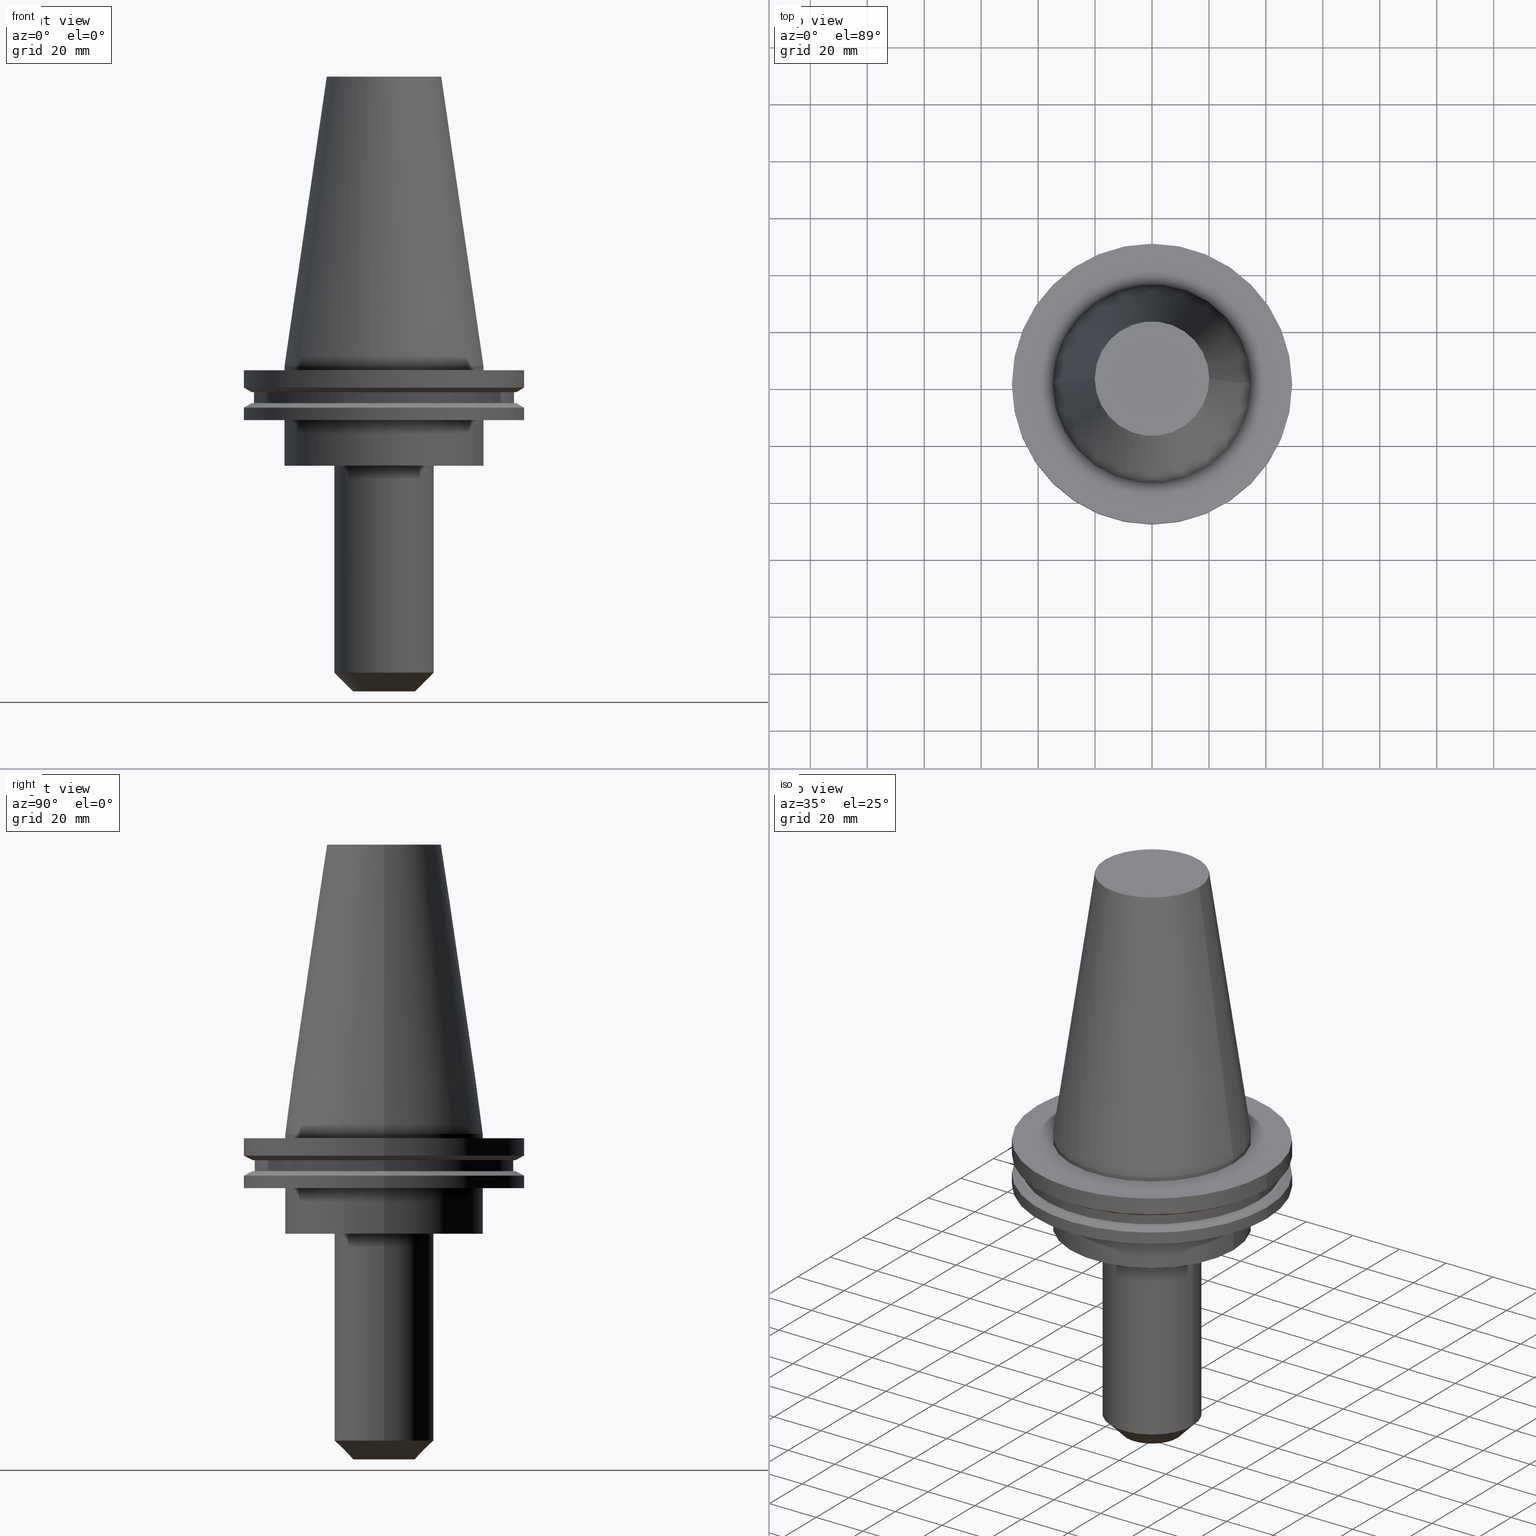
[diagram: canonical four-view strip — front | top / right | iso, engineering-drawing reading convention]
A machine part, canonical four-view strip (front | top / right | iso — engineering-drawing reading convention). The complete STEP part file that produces these views, byte-faithful:
ISO-10303-21;
HEADER;
FILE_DESCRIPTION (( 'STEP AP203' ),
    '1' );
FILE_NAME ('BCV50-EM_500-4_5.stp',
    '2022-03-03T16:43:45',
    ( '' ),
    ( '' ),
    'SwSTEP 2.0',
    'SolidWorks 2021',
    '' );
FILE_SCHEMA (( 'CONFIG_CONTROL_DESIGN' ));
ENDSEC;

DATA;
#1 = AXIS2_PLACEMENT_3D ( 'NONE', #702, #182, #779 ) ;
#2 = FACE_OUTER_BOUND ( 'NONE', #546, .T. ) ;
#3 = ADVANCED_FACE ( 'NONE', ( #620 ), #111, .T. ) ;
#4 = ORIENTED_EDGE ( 'NONE', *, *, #253, .F. ) ;
#5 = DIRECTION ( 'NONE',  ( -0.000000000000000000, -0.000000000000000000, 1.000000000000000000 ) ) ;
#6 = DIRECTION ( 'NONE',  ( 0.000000000000000000, -0.000000000000000000, 1.000000000000000000 ) ) ;
#7 = ORIENTED_EDGE ( 'NONE', *, *, #477, .T. ) ;
#8 = EDGE_CURVE ( 'NONE', #239, #487, #33, .T. ) ;
#9 = CARTESIAN_POINT ( 'NONE',  ( 0.000000000000000000, 0.000000000000000000, 0.000000000000000000 ) ) ;
#10 = VECTOR ( 'NONE', #604, 1000.000000000000000 ) ;
#11 = FACE_OUTER_BOUND ( 'NONE', #12, .T. ) ;
#12 = EDGE_LOOP ( 'NONE', ( #4, #764, #500, #728 ) ) ;
#13 = EDGE_CURVE ( 'NONE', #65, #807, #760, .T. ) ;
#14 = CARTESIAN_POINT ( 'NONE',  ( 0.000000000000000000, 0.000000000000000000, -19.04999999999999716 ) ) ;
#15 = CARTESIAN_POINT ( 'NONE',  ( -46.43919780457007818, 5.857130358318727293E-15, -9.204999999999991189 ) ) ;
#16 = AXIS2_PLACEMENT_3D ( 'NONE', #390, #190, #129 ) ;
#17 = ORIENTED_EDGE ( 'NONE', *, *, #198, .F. ) ;
#18 = DIRECTION ( 'NONE',  ( 0.7071067811865481278, 0.000000000000000000, 0.7071067811865470176 ) ) ;
#19 = DIRECTION ( 'NONE',  ( 0.1443082272672999988, 1.767266086135277066E-17, -0.9895327864921755756 ) ) ;
#20 = ORIENTED_EDGE ( 'NONE', *, *, #430, .T. ) ;
#21 = DIRECTION ( 'NONE',  ( -0.000000000000000000, -0.000000000000000000, 1.000000000000000000 ) ) ;
#22 = CARTESIAN_POINT ( 'NONE',  ( -49.21499999999998920, 6.027099222003697037E-15, -14.65761014474876944 ) ) ;
#23 = ADVANCED_BREP_SHAPE_REPRESENTATION ( 'BCV50-EM_500-4_5', ( #344, #796 ), #742 ) ;
#24 = ORIENTED_EDGE ( 'NONE', *, *, #91, .T. ) ;
#25 = DIRECTION ( 'NONE',  ( 1.000000000000000000, 0.000000000000000000, 0.000000000000000000 ) ) ;
#26 = LINE ( 'NONE', #290, #71 ) ;
#27 = EDGE_CURVE ( 'NONE', #446, #847, #671, .T. ) ;
#28 = DIRECTION ( 'NONE',  ( 1.000000000000000000, 0.000000000000000000, 0.000000000000000000 ) ) ;
#29 = AXIS2_PLACEMENT_3D ( 'NONE', #661, #265, #735 ) ;
#30 = EDGE_CURVE ( 'NONE', #255, #77, #367, .T. ) ;
#31 = LINE ( 'NONE', #90, #442 ) ;
#32 = DIRECTION ( 'NONE',  ( 1.000000000000000000, 0.000000000000000000, 0.000000000000000000 ) ) ;
#33 = LINE ( 'NONE', #237, #57 ) ;
#34 = VERTEX_POINT ( 'NONE', #767 ) ;
#35 = PERSON_AND_ORGANIZATION ( #648, #684 ) ;
#36 = ORIENTED_EDGE ( 'NONE', *, *, #789, .F. ) ;
#37 = ORIENTED_EDGE ( 'NONE', *, *, #630, .T. ) ;
#38 = DATE_AND_TIME ( #826, #137 ) ;
#39 = APPROVAL ( #109, 'UNSPECIFIED' ) ;
#40 = DIRECTION ( 'NONE',  ( -0.000000000000000000, -0.000000000000000000, 1.000000000000000000 ) ) ;
#41 = EDGE_LOOP ( 'NONE', ( #356, #152 ) ) ;
#42 = AXIS2_PLACEMENT_3D ( 'NONE', #813, #266, #527 ) ;
#43 = CALENDAR_DATE ( 2022, 3, 3 ) ;
#44 = ADVANCED_FACE ( 'NONE', ( #178, #427 ), #108, .F. ) ;
#45 = ORIENTED_EDGE ( 'NONE', *, *, #55, .T. ) ;
#46 = VERTEX_POINT ( 'NONE', #295 ) ;
#47 = PERSON_AND_ORGANIZATION ( #648, #684 ) ;
#48 = CARTESIAN_POINT ( 'NONE',  ( 0.000000000000000000, 0.000000000000000000, -19.04999999999999716 ) ) ;
#49 = DIRECTION ( 'NONE',  ( -0.000000000000000000, -0.000000000000000000, 1.000000000000000000 ) ) ;
#50 = EDGE_LOOP ( 'NONE', ( #405, #89 ) ) ;
#51 = APPROVAL_ROLE ( '' ) ;
#52 = APPROVAL_PERSON_ORGANIZATION ( #35, #675, #361 ) ;
#53 = CARTESIAN_POINT ( 'NONE',  ( -49.21499999999998920, 0.000000000000000000, -14.65761014474876944 ) ) ;
#54 = CARTESIAN_POINT ( 'NONE',  ( 49.21499999999999631, 0.000000000000000000, 101.5999999999999943 ) ) ;
#55 = EDGE_CURVE ( 'NONE', #270, #217, #718, .T. ) ;
#56 = EDGE_LOOP ( 'NONE', ( #622, #279 ) ) ;
#57 = VECTOR ( 'NONE', #502, 1000.000000000000000 ) ;
#58 = EDGE_CURVE ( 'NONE', #255, #275, #786, .T. ) ;
#59 = CONICAL_SURFACE ( 'NONE', #378, 46.43919780457007818, 1.047197551196575205 ) ;
#60 = CARTESIAN_POINT ( 'NONE',  ( -45.64500000000000313, 5.589900314708094957E-15, -9.204999999999991189 ) ) ;
#61 = CARTESIAN_POINT ( 'NONE',  ( 34.92499999999999005, 4.277078946022130098E-15, 0.000000000000000000 ) ) ;
#62 = EDGE_LOOP ( 'NONE', ( #694, #263 ) ) ;
#63 = DIRECTION ( 'NONE',  ( -0.000000000000000000, -0.000000000000000000, 1.000000000000000000 ) ) ;
#64 = DIRECTION ( 'NONE',  ( 0.000000000000000000, 0.000000000000000000, -1.000000000000000000 ) ) ;
#65 = VERTEX_POINT ( 'NONE', #692 ) ;
#66 = DIRECTION ( 'NONE',  ( 1.000000000000000000, 0.000000000000000000, 0.000000000000000000 ) ) ;
#67 = LOCAL_TIME ( 10, 43, 45.00000000000000000, #567 ) ;
#68 = DIRECTION ( 'NONE',  ( -0.000000000000000000, -0.000000000000000000, 1.000000000000000000 ) ) ;
#69 = VERTEX_POINT ( 'NONE', #225 ) ;
#70 = DIRECTION ( 'NONE',  ( -0.000000000000000000, -0.000000000000000000, 1.000000000000000000 ) ) ;
#71 = VECTOR ( 'NONE', #552, 1000.000000000000000 ) ;
#72 = DIRECTION ( 'NONE',  ( -0.000000000000000000, -0.000000000000000000, 1.000000000000000000 ) ) ;
#73 = ORIENTED_EDGE ( 'NONE', *, *, #548, .T. ) ;
#74 = DIRECTION ( 'NONE',  ( -0.000000000000000000, -0.000000000000000000, 1.000000000000000000 ) ) ;
#75 = CARTESIAN_POINT ( 'NONE',  ( 34.92499999999999005, 0.000000000000000000, -1.499999999999987566 ) ) ;
#76 = CC_DESIGN_DATE_AND_TIME_ASSIGNMENT ( #38, #638, ( #558 ) ) ;
#77 = VERTEX_POINT ( 'NONE', #486 ) ;
#78 = DIRECTION ( 'NONE',  ( 1.000000000000000000, 0.000000000000000000, 0.000000000000000000 ) ) ;
#79 = CYLINDRICAL_SURFACE ( 'NONE', #409, 6.349999999999990763 ) ;
#80 = VERTEX_POINT ( 'NONE', #165 ) ;
#81 = CARTESIAN_POINT ( 'NONE',  ( 49.21499999999998920, 0.000000000000000000, 101.5999999999999943 ) ) ;
#82 = EDGE_CURVE ( 'NONE', #346, #232, #418, .T. ) ;
#83 = AXIS2_PLACEMENT_3D ( 'NONE', #680, #187, #311 ) ;
#84 = CARTESIAN_POINT ( 'NONE',  ( -17.44999999999999218, 2.137008664512130386E-15, -107.7000000000000028 ) ) ;
#85 = ORIENTED_EDGE ( 'NONE', *, *, #565, .T. ) ;
#86 = DIRECTION ( 'NONE',  ( 0.000000000000000000, 0.000000000000000000, -1.000000000000000000 ) ) ;
#87 = EDGE_CURVE ( 'NONE', #77, #177, #687, .T. ) ;
#88 = FACE_OUTER_BOUND ( 'NONE', #706, .T. ) ;
#89 = ORIENTED_EDGE ( 'NONE', *, *, #241, .F. ) ;
#90 = CARTESIAN_POINT ( 'NONE',  ( 10.84999999999998899, 0.000000000000000000, -114.2999999999999972 ) ) ;
#91 = EDGE_CURVE ( 'NONE', #542, #339, #745, .T. ) ;
#92 = FACE_OUTER_BOUND ( 'NONE', #681, .T. ) ;
#93 = ORIENTED_EDGE ( 'NONE', *, *, #731, .T. ) ;
#94 = CARTESIAN_POINT ( 'NONE',  ( 0.000000000000000000, 0.000000000000000000, -13.05499999999999794 ) ) ;
#95 = FACE_OUTER_BOUND ( 'NONE', #650, .T. ) ;
#96 = VECTOR ( 'NONE', #68, 1000.000000000000000 ) ;
#97 = CIRCLE ( 'NONE', #575, 46.43919780457007818 ) ;
#98 = EDGE_CURVE ( 'NONE', #487, #497, #406, .T. ) ;
#99 = ORIENTED_EDGE ( 'NONE', *, *, #630, .F. ) ;
#100 = CONICAL_SURFACE ( 'NONE', #576, 49.21499999999998920, 1.047197551196554333 ) ;
#101 = ORIENTED_EDGE ( 'NONE', *, *, #563, .F. ) ;
#102 = DIRECTION ( 'NONE',  ( 1.000000000000000000, 0.000000000000000000, 0.000000000000000000 ) ) ;
#103 = UNCERTAINTY_MEASURE_WITH_UNIT (LENGTH_MEASURE( 1.000000000000000082E-05 ), #117, 'distance_accuracy_value', 'NONE');
#104 = ORIENTED_EDGE ( 'NONE', *, *, #563, .T. ) ;
#105 = CC_DESIGN_PERSON_AND_ORGANIZATION_ASSIGNMENT ( #762, #171, ( #282 ) ) ;
#106 = ORIENTED_EDGE ( 'NONE', *, *, #457, .F. ) ;
#107 = DIRECTION ( 'NONE',  ( 0.000000000000000000, 0.000000000000000000, 1.000000000000000000 ) ) ;
#108 = PLANE ( 'NONE',  #547 ) ;
#109 = APPROVAL_STATUS ( 'not_yet_approved' ) ;
#110 = ADVANCED_FACE ( 'NONE', ( #724 ), #449, .T. ) ;
#111 = CYLINDRICAL_SURFACE ( 'NONE', #326, 34.92499999999999716 ) ;
#112 = CIRCLE ( 'NONE', #551, 6.349999999999994316 ) ;
#113 = LINE ( 'NONE', #568, #288 ) ;
#114 = EDGE_CURVE ( 'NONE', #222, #239, #574, .T. ) ;
#115 = DIRECTION ( 'NONE',  ( -0.000000000000000000, -0.000000000000000000, 1.000000000000000000 ) ) ;
#116 = EDGE_LOOP ( 'NONE', ( #529, #572, #711, #525 ) ) ;
#117 =( LENGTH_UNIT ( ) NAMED_UNIT ( * ) SI_UNIT ( .MILLI., .METRE. ) );
#118 = CYLINDRICAL_SURFACE ( 'NONE', #128, 34.92499999999999716 ) ;
#119 = ADVANCED_FACE ( 'NONE', ( #849 ), #519, .T. ) ;
#120 = CARTESIAN_POINT ( 'NONE',  ( 0.000000000000000000, 0.000000000000000000, -7.602389855251287187 ) ) ;
#121 = EDGE_CURVE ( 'NONE', #34, #387, #615, .T. ) ;
#122 = ORIENTED_EDGE ( 'NONE', *, *, #693, .T. ) ;
#123 = DIRECTION ( 'NONE',  ( -0.000000000000000000, -0.000000000000000000, 1.000000000000000000 ) ) ;
#124 = DIRECTION ( 'NONE',  ( 1.000000000000000000, 0.000000000000000000, 0.000000000000000000 ) ) ;
#125 = ADVANCED_FACE ( 'NONE', ( #443 ), #601, .T. ) ;
#126 = VERTEX_POINT ( 'NONE', #777 ) ;
#127 = CIRCLE ( 'NONE', #341, 49.21500000000000341 ) ;
#128 = AXIS2_PLACEMENT_3D ( 'NONE', #224, #485, #294 ) ;
#129 = DIRECTION ( 'NONE',  ( 1.000000000000000000, 0.000000000000000000, 0.000000000000000000 ) ) ;
#130 = CIRCLE ( 'NONE', #845, 46.43919780457007818 ) ;
#131 = FACE_BOUND ( 'NONE', #511, .T. ) ;
#132 = EDGE_LOOP ( 'NONE', ( #850, #382 ) ) ;
#133 = DIRECTION ( 'NONE',  ( -0.000000000000000000, -0.000000000000000000, 1.000000000000000000 ) ) ;
#134 = DIRECTION ( 'NONE',  ( -0.000000000000000000, -0.000000000000000000, 1.000000000000000000 ) ) ;
#135 = EDGE_LOOP ( 'NONE', ( #678, #73, #585, #803 ) ) ;
#136 = DIRECTION ( 'NONE',  ( 1.000000000000000000, 0.000000000000000000, 0.000000000000000000 ) ) ;
#137 = LOCAL_TIME ( 10, 43, 45.00000000000000000, #439 ) ;
#138 = EDGE_CURVE ( 'NONE', #542, #77, #313, .T. ) ;
#139 = CARTESIAN_POINT ( 'NONE',  ( 6.349999999999994316, 0.000000000000000000, -114.2999999999999972 ) ) ;
#140 = ORIENTED_EDGE ( 'NONE', *, *, #114, .T. ) ;
#141 = LINE ( 'NONE', #651, #603 ) ;
#142 = CIRCLE ( 'NONE', #193, 34.92499999999999716 ) ;
#143 = CIRCLE ( 'NONE', #536, 6.349999999999990763 ) ;
#144 = DIRECTION ( 'NONE',  ( -0.000000000000000000, -0.000000000000000000, 1.000000000000000000 ) ) ;
#145 = ORIENTED_EDGE ( 'NONE', *, *, #822, .T. ) ;
#146 = DIRECTION ( 'NONE',  ( 1.000000000000000000, 0.000000000000000000, 0.000000000000000000 ) ) ;
#147 = CARTESIAN_POINT ( 'NONE',  ( 0.000000000000000000, 34.92499999999999716, -35.04999999999999716 ) ) ;
#148 = EDGE_LOOP ( 'NONE', ( #140, #597, #834, #349 ) ) ;
#149 = FACE_OUTER_BOUND ( 'NONE', #699, .T. ) ;
#150 = CC_DESIGN_APPROVAL ( #675, ( #558 ) ) ;
#151 = DIRECTION ( 'NONE',  ( -0.000000000000000000, -0.000000000000000000, 1.000000000000000000 ) ) ;
#152 = ORIENTED_EDGE ( 'NONE', *, *, #324, .F. ) ;
#153 = DIRECTION ( 'NONE',  ( -0.000000000000000000, -0.000000000000000000, 1.000000000000000000 ) ) ;
#154 = VECTOR ( 'NONE', #302, 999.9999999999998863 ) ;
#155 = APPLICATION_CONTEXT ( 'configuration controlled 3d designs of mechanical parts and assemblies' ) ;
#156 = CIRCLE ( 'NONE', #843, 49.21500000000000341 ) ;
#157 = DIRECTION ( 'NONE',  ( 0.000000000000000000, 0.000000000000000000, -1.000000000000000000 ) ) ;
#158 = EDGE_LOOP ( 'NONE', ( #734, #781, #483, #539 ) ) ;
#159 = CARTESIAN_POINT ( 'NONE',  ( 0.000000000000000000, 0.000000000000000000, -14.65761014474876944 ) ) ;
#160 = DIRECTION ( 'NONE',  ( 1.000000000000000000, 0.000000000000000000, 0.000000000000000000 ) ) ;
#161 = ORIENTED_EDGE ( 'NONE', *, *, #810, .T. ) ;
#162 = DIRECTION ( 'NONE',  ( 1.000000000000000000, 0.000000000000000000, 0.000000000000000000 ) ) ;
#163 = FACE_OUTER_BOUND ( 'NONE', #41, .T. ) ;
#164 = VECTOR ( 'NONE', #610, 1000.000000000000000 ) ;
#165 = CARTESIAN_POINT ( 'NONE',  ( -6.349999999999993427, 7.776507174585686247E-16, -114.2999999999999972 ) ) ;
#166 = DIRECTION ( 'NONE',  ( -0.000000000000000000, -0.000000000000000000, 1.000000000000000000 ) ) ;
#167 = DIRECTION ( 'NONE',  ( -0.000000000000000000, -0.000000000000000000, 1.000000000000000000 ) ) ;
#168 = ADVANCED_FACE ( 'NONE', ( #577, #131 ), #244, .F. ) ;
#169 = VECTOR ( 'NONE', #504, 1000.000000000000000 ) ;
#170 = DIRECTION ( 'NONE',  ( 0.000000000000000000, 0.000000000000000000, -1.000000000000000000 ) ) ;
#171 = PERSON_AND_ORGANIZATION_ROLE ( 'design_supplier' ) ;
#172 = CARTESIAN_POINT ( 'NONE',  ( 0.000000000000000000, 0.000000000000000000, -1.499999999999987566 ) ) ;
#173 = ORIENTED_EDGE ( 'NONE', *, *, #98, .T. ) ;
#174 = DATE_TIME_ROLE ( 'classification_date' ) ;
#175 = CIRCLE ( 'NONE', #459, 46.43919780457007818 ) ;
#176 = DIRECTION ( 'NONE',  ( -1.000000000000000000, 0.000000000000000000, -0.000000000000000000 ) ) ;
#177 = VERTEX_POINT ( 'NONE', #61 ) ;
#178 = FACE_BOUND ( 'NONE', #132, .T. ) ;
#179 = AXIS2_PLACEMENT_3D ( 'NONE', #656, #461, #851 ) ;
#180 = CIRCLE ( 'NONE', #289, 49.21499999999998920 ) ;
#181 = EDGE_CURVE ( 'NONE', #506, #455, #127, .T. ) ;
#182 = DIRECTION ( 'NONE',  ( 0.000000000000000000, -0.000000000000000000, 1.000000000000000000 ) ) ;
#183 = ADVANCED_FACE ( 'NONE', ( #510, #184 ), #505, .F. ) ;
#184 = FACE_BOUND ( 'NONE', #251, .T. ) ;
#185 = ORIENTED_EDGE ( 'NONE', *, *, #138, .T. ) ;
#186 = DATE_AND_TIME ( #299, #770 ) ;
#187 = DIRECTION ( 'NONE',  ( -0.000000000000000000, -0.000000000000000000, 1.000000000000000000 ) ) ;
#188 = DIRECTION ( 'NONE',  ( -0.000000000000000000, -0.000000000000000000, 1.000000000000000000 ) ) ;
#189 = ORIENTED_EDGE ( 'NONE', *, *, #87, .F. ) ;
#190 = DIRECTION ( 'NONE',  ( -0.000000000000000000, -0.000000000000000000, 1.000000000000000000 ) ) ;
#191 = CARTESIAN_POINT ( 'NONE',  ( -34.92499999999999005, 4.277078946022130098E-15, 101.5999999999999943 ) ) ;
#192 = ORIENTED_EDGE ( 'NONE', *, *, #181, .T. ) ;
#193 = AXIS2_PLACEMENT_3D ( 'NONE', #204, #274, #345 ) ;
#194 = FACE_BOUND ( 'NONE', #62, .T. ) ;
#195 = AXIS2_PLACEMENT_3D ( 'NONE', #456, #526, #78 ) ;
#196 = DIRECTION ( 'NONE',  ( -0.000000000000000000, -0.000000000000000000, 1.000000000000000000 ) ) ;
#197 = ORIENTED_EDGE ( 'NONE', *, *, #593, .F. ) ;
#198 = EDGE_CURVE ( 'NONE', #335, #364, #533, .T. ) ;
#199 = DIRECTION ( 'NONE',  ( 1.000000000000000000, 0.000000000000000000, 0.000000000000000000 ) ) ;
#200 = CARTESIAN_POINT ( 'NONE',  ( 0.000000000000000000, 49.21499999999998920, -19.04999999999999716 ) ) ;
#201 = EDGE_LOOP ( 'NONE', ( #226, #425, #833, #106 ) ) ;
#202 = ADVANCED_FACE ( 'NONE', ( #580 ), #515, .F. ) ;
#203 = CARTESIAN_POINT ( 'NONE',  ( 0.000000000000000000, 0.000000000000000000, 101.5999999999999943 ) ) ;
#204 = CARTESIAN_POINT ( 'NONE',  ( 0.000000000000000000, 0.000000000000000000, -35.04999999999999716 ) ) ;
#205 = VECTOR ( 'NONE', #359, 1000.000000000000000 ) ;
#206 = DIRECTION ( 'NONE',  ( 1.000000000000000000, 0.000000000000000000, 0.000000000000000000 ) ) ;
#207 = VECTOR ( 'NONE', #5, 1000.000000000000000 ) ;
#208 = ADVANCED_FACE ( 'NONE', ( #2 ), #257, .T. ) ;
#209 = FACE_OUTER_BOUND ( 'NONE', #853, .T. ) ;
#210 = ORIENTED_EDGE ( 'NONE', *, *, #330, .F. ) ;
#211 = DIRECTION ( 'NONE',  ( 0.000000000000000000, 0.000000000000000000, -1.000000000000000000 ) ) ;
#212 = CARTESIAN_POINT ( 'NONE',  ( 45.64500000000000313, 0.000000000000000000, 101.5999999999999943 ) ) ;
#213 = ORIENTED_EDGE ( 'NONE', *, *, #758, .T. ) ;
#214 = DIRECTION ( 'NONE',  ( -0.000000000000000000, -0.000000000000000000, 1.000000000000000000 ) ) ;
#215 = CARTESIAN_POINT ( 'NONE',  ( 0.000000000000000000, 0.000000000000000000, 0.000000000000000000 ) ) ;
#216 = CC_DESIGN_PERSON_AND_ORGANIZATION_ASSIGNMENT ( #557, #492, ( #282 ) ) ;
#217 = VERTEX_POINT ( 'NONE', #458 ) ;
#218 = CARTESIAN_POINT ( 'NONE',  ( 0.000000000000000000, 0.000000000000000000, -9.204999999999991189 ) ) ;
#219 = CIRCLE ( 'NONE', #260, 10.84999999999998899 ) ;
#220 = AXIS2_PLACEMENT_3D ( 'NONE', #723, #133, #261 ) ;
#221 = LINE ( 'NONE', #269, #535 ) ;
#222 = VERTEX_POINT ( 'NONE', #570 ) ;
#223 = CARTESIAN_POINT ( 'NONE',  ( -6.349999999999990763, 7.776507174585682302E-16, 0.000000000000000000 ) ) ;
#224 = CARTESIAN_POINT ( 'NONE',  ( 0.000000000000000000, 0.000000000000000000, 101.5999999999999943 ) ) ;
#225 = CARTESIAN_POINT ( 'NONE',  ( -10.84999999999998899, 1.732875220793503490E-15, -114.2999999999999972 ) ) ;
#226 = ORIENTED_EDGE ( 'NONE', *, *, #842, .T. ) ;
#227 = DIRECTION ( 'NONE',  ( -0.000000000000000000, -0.000000000000000000, 1.000000000000000000 ) ) ;
#228 = EDGE_CURVE ( 'NONE', #506, #446, #374, .T. ) ;
#229 = DIRECTION ( 'NONE',  ( -0.000000000000000000, -0.000000000000000000, 1.000000000000000000 ) ) ;
#230 = EDGE_LOOP ( 'NONE', ( #451, #686, #363, #17 ) ) ;
#231 = APPLICATION_PROTOCOL_DEFINITION ( 'international standard', 'config_control_design', 1994, #491 ) ;
#232 = VERTEX_POINT ( 'NONE', #22 ) ;
#233 = AXIS2_PLACEMENT_3D ( 'NONE', #595, #70, #66 ) ;
#234 = COORDINATED_UNIVERSAL_TIME_OFFSET ( 6, 0, .BEHIND. ) ;
#235 = ADVANCED_FACE ( 'NONE', ( #338 ), #79, .F. ) ;
#236 = VERTEX_POINT ( 'NONE', #139 ) ;
#237 = CARTESIAN_POINT ( 'NONE',  ( -45.64500000000000313, 5.589900314708094957E-15, 101.5999999999999943 ) ) ;
#238 = LOCAL_TIME ( 10, 43, 45.00000000000000000, #234 ) ;
#239 = VERTEX_POINT ( 'NONE', #733 ) ;
#240 =( NAMED_UNIT ( * ) PLANE_ANGLE_UNIT ( ) SI_UNIT ( $, .RADIAN. ) );
#241 = EDGE_CURVE ( 'NONE', #46, #490, #142, .T. ) ;
#242 = DIRECTION ( 'NONE',  ( -0.000000000000000000, -0.000000000000000000, 1.000000000000000000 ) ) ;
#243 = AXIS2_PLACEMENT_3D ( 'NONE', #846, #115, #520 ) ;
#244 = PLANE ( 'NONE',  #312 ) ;
#245 = AXIS2_PLACEMENT_3D ( 'NONE', #396, #471, #348 ) ;
#246 = ORIENTED_EDGE ( 'NONE', *, *, #704, .T. ) ;
#247 = COORDINATED_UNIVERSAL_TIME_OFFSET ( 6, 0, .BEHIND. ) ;
#248 = ADVANCED_FACE ( 'NONE', ( #11 ), #422, .T. ) ;
#249 = DIRECTION ( 'NONE',  ( -0.8660254037844169472, 0.000000000000000000, -0.5000000000000375255 ) ) ;
#250 = DIRECTION ( 'NONE',  ( -0.000000000000000000, -0.000000000000000000, 1.000000000000000000 ) ) ;
#251 = EDGE_LOOP ( 'NONE', ( #213, #173 ) ) ;
#252 = CARTESIAN_POINT ( 'NONE',  ( 0.000000000000000000, 0.000000000000000000, -35.04999999999999716 ) ) ;
#253 = EDGE_CURVE ( 'NONE', #275, #177, #736, .T. ) ;
#254 = CARTESIAN_POINT ( 'NONE',  ( 0.000000000000000000, 46.43919780457007818, -9.204999999999998295 ) ) ;
#255 = VERTEX_POINT ( 'NONE', #806 ) ;
#256 = CARTESIAN_POINT ( 'NONE',  ( 0.000000000000000000, 0.000000000000000000, 101.5999999999999943 ) ) ;
#257 = CYLINDRICAL_SURFACE ( 'NONE', #657, 34.92499999999999005 ) ;
#258 = EDGE_LOOP ( 'NONE', ( #122, #516 ) ) ;
#259 = AXIS2_PLACEMENT_3D ( 'NONE', #623, #250, #370 ) ;
#260 = AXIS2_PLACEMENT_3D ( 'NONE', #744, #410, #283 ) ;
#261 = DIRECTION ( 'NONE',  ( 1.000000000000000000, 0.000000000000000000, 0.000000000000000000 ) ) ;
#262 = CARTESIAN_POINT ( 'NONE',  ( 0.000000000000000000, 0.000000000000000000, 101.5999999999999943 ) ) ;
#263 = ORIENTED_EDGE ( 'NONE', *, *, #13, .F. ) ;
#264 = APPROVAL_DATE_TIME ( #304, #39 ) ;
#265 = DIRECTION ( 'NONE',  ( -0.000000000000000000, -0.000000000000000000, 1.000000000000000000 ) ) ;
#266 = DIRECTION ( 'NONE',  ( -0.000000000000000000, -0.000000000000000000, 1.000000000000000000 ) ) ;
#267 = ORIENTED_EDGE ( 'NONE', *, *, #593, .T. ) ;
#268 = FACE_BOUND ( 'NONE', #56, .T. ) ;
#269 = CARTESIAN_POINT ( 'NONE',  ( 34.92499999999999005, 0.000000000000000000, 101.5999999999999943 ) ) ;
#270 = VERTEX_POINT ( 'NONE', #15 ) ;
#271 = DIRECTION ( 'NONE',  ( -0.000000000000000000, -0.000000000000000000, 1.000000000000000000 ) ) ;
#272 = ADVANCED_FACE ( 'NONE', ( #392 ), #670, .F. ) ;
#273 = CONICAL_SURFACE ( 'NONE', #763, 10.84999999999998899, 0.7853981633974490562 ) ;
#274 = DIRECTION ( 'NONE',  ( -0.000000000000000000, -0.000000000000000000, 1.000000000000000000 ) ) ;
#275 = VERTEX_POINT ( 'NONE', #475 ) ;
#276 = DIRECTION ( 'NONE',  ( -0.000000000000000000, -0.000000000000000000, 1.000000000000000000 ) ) ;
#277 = EDGE_CURVE ( 'NONE', #222, #497, #278, .T. ) ;
#278 = LINE ( 'NONE', #212, #787 ) ;
#279 = ORIENTED_EDGE ( 'NONE', *, *, #430, .F. ) ;
#280 = FACE_OUTER_BOUND ( 'NONE', #602, .T. ) ;
#281 = AXIS2_PLACEMENT_3D ( 'NONE', #607, #211, #286 ) ;
#282 = PRODUCT_DEFINITION_FORMATION_WITH_SPECIFIED_SOURCE ( 'ANY', '', #453, .NOT_KNOWN. ) ;
#283 = DIRECTION ( 'NONE',  ( 1.000000000000000000, 0.000000000000000000, 0.000000000000000000 ) ) ;
#284 = EDGE_CURVE ( 'NONE', #46, #496, #658, .T. ) ;
#285 = ORIENTED_EDGE ( 'NONE', *, *, #383, .F. ) ;
#286 = DIRECTION ( 'NONE',  ( 1.000000000000000000, 0.000000000000000000, 0.000000000000000000 ) ) ;
#287 = CLOSED_SHELL ( 'NONE', ( #235, #751, #391, #208, #292, #424, #646, #119, #110, #3, #125, #636, #248, #730, #462, #168, #828, #737, #599, #507, #183, #336, #698, #44, #756, #621, #613, #408, #202, #272 ) ) ;
#288 = VECTOR ( 'NONE', #123, 1000.000000000000000 ) ;
#289 = AXIS2_PLACEMENT_3D ( 'NONE', #14, #271, #407 ) ;
#290 = CARTESIAN_POINT ( 'NONE',  ( -10.84999999999998899, 1.328741777074876791E-15, -114.2999999999999972 ) ) ;
#291 = CARTESIAN_POINT ( 'NONE',  ( 0.000000000000000000, 0.000000000000000000, 101.5999999999999801 ) ) ;
#292 = ADVANCED_FACE ( 'NONE', ( #88 ), #797, .T. ) ;
#293 = DIRECTION ( 'NONE',  ( 1.000000000000000000, 0.000000000000000000, 0.000000000000000000 ) ) ;
#294 = DIRECTION ( 'NONE',  ( 1.000000000000000000, 0.000000000000000000, 0.000000000000000000 ) ) ;
#295 = CARTESIAN_POINT ( 'NONE',  ( -34.92499999999999716, 4.277078946022130887E-15, -35.04999999999999716 ) ) ;
#296 = EDGE_CURVE ( 'NONE', #455, #506, #156, .T. ) ;
#297 = EDGE_LOOP ( 'NONE', ( #197, #798, #161, #145 ) ) ;
#298 = VERTEX_POINT ( 'NONE', #532 ) ;
#299 = CALENDAR_DATE ( 2022, 3, 3 ) ;
#300 = EDGE_CURVE ( 'NONE', #559, #69, #219, .T. ) ;
#301 = AXIS2_PLACEMENT_3D ( 'NONE', #172, #40, #824 ) ;
#302 = DIRECTION ( 'NONE',  ( -0.1443082272672999988, 0.000000000000000000, -0.9895327864921755756 ) ) ;
#303 = ORIENTED_EDGE ( 'NONE', *, *, #634, .F. ) ;
#304 = DATE_AND_TIME ( #43, #474 ) ;
#305 = EDGE_CURVE ( 'NONE', #339, #177, #221, .T. ) ;
#306 = EDGE_LOOP ( 'NONE', ( #716, #414 ) ) ;
#307 = ORIENTED_EDGE ( 'NONE', *, *, #305, .F. ) ;
#308 = CYLINDRICAL_SURFACE ( 'NONE', #830, 45.64500000000000313 ) ;
#309 = CARTESIAN_POINT ( 'NONE',  ( 0.000000000000000000, 0.000000000000000000, -13.05499999999999794 ) ) ;
#310 = PERSON_AND_ORGANIZATION ( #648, #684 ) ;
#311 = DIRECTION ( 'NONE',  ( 1.000000000000000000, 0.000000000000000000, 0.000000000000000000 ) ) ;
#312 = AXIS2_PLACEMENT_3D ( 'NONE', #200, #584, #715 ) ;
#313 = LINE ( 'NONE', #191, #96 ) ;
#314 = CIRCLE ( 'NONE', #481, 10.84999999999998899 ) ;
#315 = ORIENTED_EDGE ( 'NONE', *, *, #731, .F. ) ;
#316 = CIRCLE ( 'NONE', #403, 45.64500000000000313 ) ;
#317 = DIRECTION ( 'NONE',  ( 1.000000000000000000, 0.000000000000000000, 0.000000000000000000 ) ) ;
#318 = DIRECTION ( 'NONE',  ( 1.000000000000000000, 0.000000000000000000, 0.000000000000000000 ) ) ;
#319 = EDGE_LOOP ( 'NONE', ( #303, #793 ) ) ;
#320 = DIRECTION ( 'NONE',  ( 1.000000000000000000, 0.000000000000000000, 0.000000000000000000 ) ) ;
#321 = CARTESIAN_POINT ( 'NONE',  ( 0.000000000000000000, 0.000000000000000000, -1.499999999999987566 ) ) ;
#322 = ORIENTED_EDGE ( 'NONE', *, *, #13, .T. ) ;
#323 = CARTESIAN_POINT ( 'NONE',  ( 34.92499999999999716, 0.000000000000000000, -19.04999999999999716 ) ) ;
#324 = EDGE_CURVE ( 'NONE', #69, #559, #314, .T. ) ;
#325 = DIRECTION ( 'NONE',  ( 0.000000000000000000, 0.000000000000000000, -1.000000000000000000 ) ) ;
#326 = AXIS2_PLACEMENT_3D ( 'NONE', #836, #499, #705 ) ;
#327 = ORIENTED_EDGE ( 'NONE', *, *, #514, .F. ) ;
#328 = AXIS2_PLACEMENT_3D ( 'NONE', #48, #708, #32 ) ;
#329 = DIRECTION ( 'NONE',  ( 0.000000000000000000, 0.000000000000000000, -1.000000000000000000 ) ) ;
#330 = EDGE_CURVE ( 'NONE', #80, #236, #732, .T. ) ;
#331 = DIRECTION ( 'NONE',  ( 1.000000000000000000, 0.000000000000000000, 0.000000000000000000 ) ) ;
#332 = ORIENTED_EDGE ( 'NONE', *, *, #55, .F. ) ;
#333 = DIRECTION ( 'NONE',  ( -0.000000000000000000, -0.000000000000000000, 1.000000000000000000 ) ) ;
#334 = CARTESIAN_POINT ( 'NONE',  ( -49.21499999999998920, 6.027099222003697037E-15, -19.04999999999999716 ) ) ;
#335 = VERTEX_POINT ( 'NONE', #84 ) ;
#336 = ADVANCED_FACE ( 'NONE', ( #209 ), #466, .T. ) ;
#337 = FACE_OUTER_BOUND ( 'NONE', #148, .T. ) ;
#338 = FACE_OUTER_BOUND ( 'NONE', #594, .T. ) ;
#339 = VERTEX_POINT ( 'NONE', #75 ) ;
#340 = CC_DESIGN_DATE_AND_TIME_ASSIGNMENT ( #766, #174, ( #611 ) ) ;
#341 = AXIS2_PLACEMENT_3D ( 'NONE', #120, #196, #852 ) ;
#342 = CARTESIAN_POINT ( 'NONE',  ( 0.000000000000000000, 0.000000000000000000, -35.04999999999999716 ) ) ;
#343 = AXIS2_PLACEMENT_3D ( 'NONE', #801, #740, #592 ) ;
#344 = MANIFOLD_SOLID_BREP ( 'EM', #287 ) ;
#345 = DIRECTION ( 'NONE',  ( 1.000000000000000000, 0.000000000000000000, 0.000000000000000000 ) ) ;
#346 = VERTEX_POINT ( 'NONE', #334 ) ;
#347 = DIRECTION ( 'NONE',  ( 0.8660254037844169472, 1.060575238724880168E-16, -0.5000000000000375255 ) ) ;
#348 = DIRECTION ( 'NONE',  ( 1.000000000000000000, 0.000000000000000000, 0.000000000000000000 ) ) ;
#349 = ORIENTED_EDGE ( 'NONE', *, *, #277, .F. ) ;
#350 = CARTESIAN_POINT ( 'NONE',  ( 0.000000000000000000, 0.000000000000000000, -114.2999999999999972 ) ) ;
#351 = AXIS2_PLACEMENT_3D ( 'NONE', #159, #488, #617 ) ;
#352 = DIRECTION ( 'NONE',  ( 1.000000000000000000, 0.000000000000000000, 0.000000000000000000 ) ) ;
#353 = DIRECTION ( 'NONE',  ( 0.000000000000000000, 0.000000000000000000, -1.000000000000000000 ) ) ;
#354 = DIRECTION ( 'NONE',  ( 0.000000000000000000, 0.000000000000000000, -1.000000000000000000 ) ) ;
#355 = AXIS2_PLACEMENT_3D ( 'NONE', #256, #517, #452 ) ;
#356 = ORIENTED_EDGE ( 'NONE', *, *, #300, .F. ) ;
#357 = ORIENTED_EDGE ( 'NONE', *, *, #565, .F. ) ;
#358 = CARTESIAN_POINT ( 'NONE',  ( 0.000000000000000000, 0.000000000000000000, 101.5999999999999943 ) ) ;
#359 = DIRECTION ( 'NONE',  ( -0.000000000000000000, -0.000000000000000000, 1.000000000000000000 ) ) ;
#360 = EDGE_LOOP ( 'NONE', ( #285, #332 ) ) ;
#361 = APPROVAL_ROLE ( '' ) ;
#362 = VECTOR ( 'NONE', #347, 1000.000000000000114 ) ;
#363 = ORIENTED_EDGE ( 'NONE', *, *, #795, .T. ) ;
#364 = VERTEX_POINT ( 'NONE', #596 ) ;
#365 = APPROVAL_ROLE ( '' ) ;
#366 = VECTOR ( 'NONE', #541, 1000.000000000000000 ) ;
#367 = LINE ( 'NONE', #614, #154 ) ;
#368 = PERSON_AND_ORGANIZATION_ROLE ( 'creator' ) ;
#369 = FACE_BOUND ( 'NONE', #258, .T. ) ;
#370 = DIRECTION ( 'NONE',  ( 1.000000000000000000, 0.000000000000000000, 0.000000000000000000 ) ) ;
#371 = ORIENTED_EDGE ( 'NONE', *, *, #121, .T. ) ;
#372 = CARTESIAN_POINT ( 'NONE',  ( 0.000000000000000000, 0.000000000000000000, 0.000000000000000000 ) ) ;
#373 = CARTESIAN_POINT ( 'NONE',  ( 34.92499999999999716, 0.000000000000000000, -35.04999999999999716 ) ) ;
#374 = LINE ( 'NONE', #54, #761 ) ;
#375 = ORIENTED_EDGE ( 'NONE', *, *, #417, .F. ) ;
#376 = CARTESIAN_POINT ( 'NONE',  ( -46.43919780457007818, 0.000000000000000000, -13.05499999999999794 ) ) ;
#377 = DIRECTION ( 'NONE',  ( -1.000000000000000000, 0.000000000000000000, 0.000000000000000000 ) ) ;
#378 = AXIS2_PLACEMENT_3D ( 'NONE', #752, #167, #619 ) ;
#379 = ORIENTED_EDGE ( 'NONE', *, *, #583, .T. ) ;
#380 = FACE_OUTER_BOUND ( 'NONE', #230, .T. ) ;
#381 = CARTESIAN_POINT ( 'NONE',  ( 0.000000000000000000, 0.000000000000000000, 0.000000000000000000 ) ) ;
#382 = ORIENTED_EDGE ( 'NONE', *, *, #91, .F. ) ;
#383 = EDGE_CURVE ( 'NONE', #217, #270, #97, .T. ) ;
#384 = FACE_OUTER_BOUND ( 'NONE', #297, .T. ) ;
#385 = CARTESIAN_POINT ( 'NONE',  ( 0.000000000000000000, 0.000000000000000000, 101.5999999999999943 ) ) ;
#386 = CIRCLE ( 'NONE', #682, 34.92499999999999716 ) ;
#387 = VERTEX_POINT ( 'NONE', #416 ) ;
#388 = SHAPE_DEFINITION_REPRESENTATION ( #509, #23 ) ;
#389 = APPROVAL_PERSON_ORGANIZATION ( #428, #39, #365 ) ;
#390 = CARTESIAN_POINT ( 'NONE',  ( 0.000000000000000000, 0.000000000000000000, 101.5999999999999801 ) ) ;
#391 = ADVANCED_FACE ( 'NONE', ( #844 ), #757, .T. ) ;
#392 = FACE_OUTER_BOUND ( 'NONE', #319, .T. ) ;
#393 = AXIS2_PLACEMENT_3D ( 'NONE', #771, #353, #626 ) ;
#394 = ORIENTED_EDGE ( 'NONE', *, *, #444, .T. ) ;
#395 = CARTESIAN_POINT ( 'NONE',  ( 0.000000000000000000, 0.000000000000000000, -107.7000000000000028 ) ) ;
#396 = CARTESIAN_POINT ( 'NONE',  ( 0.000000000000000000, 0.000000000000000000, 101.5999999999999943 ) ) ;
#397 = EDGE_CURVE ( 'NONE', #476, #232, #573, .T. ) ;
#398 = ORIENTED_EDGE ( 'NONE', *, *, #397, .T. ) ;
#399 = FACE_OUTER_BOUND ( 'NONE', #50, .T. ) ;
#400 = DIRECTION ( 'NONE',  ( 1.000000000000000000, 0.000000000000000000, 0.000000000000000000 ) ) ;
#401 = ORIENTED_EDGE ( 'NONE', *, *, #284, .F. ) ;
#402 = DIRECTION ( 'NONE',  ( -1.000000000000000000, 0.000000000000000000, -0.000000000000000000 ) ) ;
#403 = AXIS2_PLACEMENT_3D ( 'NONE', #218, #817, #293 ) ;
#404 = DIRECTION ( 'NONE',  ( 1.000000000000000000, 0.000000000000000000, 0.000000000000000000 ) ) ;
#405 = ORIENTED_EDGE ( 'NONE', *, *, #842, .F. ) ;
#406 = CIRCLE ( 'NONE', #431, 45.64500000000000313 ) ;
#407 = DIRECTION ( 'NONE',  ( 1.000000000000000000, 0.000000000000000000, 0.000000000000000000 ) ) ;
#408 = ADVANCED_FACE ( 'NONE', ( #163, #369 ), #848, .F. ) ;
#409 = AXIS2_PLACEMENT_3D ( 'NONE', #727, #600, #404 ) ;
#410 = DIRECTION ( 'NONE',  ( -0.000000000000000000, -0.000000000000000000, 1.000000000000000000 ) ) ;
#411 = EDGE_LOOP ( 'NONE', ( #590, #645, #637, #472 ) ) ;
#412 = LINE ( 'NONE', #81, #10 ) ;
#413 = CARTESIAN_POINT ( 'NONE',  ( 45.64500000000000313, 0.000000000000000000, -9.204999999999991189 ) ) ;
#414 = ORIENTED_EDGE ( 'NONE', *, *, #583, .F. ) ;
#415 = DIRECTION ( 'NONE',  ( 1.000000000000000000, 0.000000000000000000, 0.000000000000000000 ) ) ;
#416 = CARTESIAN_POINT ( 'NONE',  ( 6.349999999999990763, 0.000000000000000000, -35.04999999999999716 ) ) ;
#417 = EDGE_CURVE ( 'NONE', #270, #455, #435, .T. ) ;
#418 = LINE ( 'NONE', #556, #205 ) ;
#419 = ORIENTED_EDGE ( 'NONE', *, *, #810, .F. ) ;
#420 = CARTESIAN_POINT ( 'NONE',  ( 17.44999999999998863, 0.000000000000000000, 0.000000000000000000 ) ) ;
#421 = AXIS2_PLACEMENT_3D ( 'NONE', #644, #710, #318 ) ;
#422 = CONICAL_SURFACE ( 'NONE', #673, 34.92499999999999005, 0.1448138465474119452 ) ;
#423 = CARTESIAN_POINT ( 'NONE',  ( 49.21500000000000341, 0.000000000000000000, -7.602389855251287187 ) ) ;
#424 = ADVANCED_FACE ( 'NONE', ( #95 ), #59, .T. ) ;
#425 = ORIENTED_EDGE ( 'NONE', *, *, #284, .T. ) ;
#426 = SECURITY_CLASSIFICATION_LEVEL ( 'unclassified' ) ;
#427 = FACE_OUTER_BOUND ( 'NONE', #840, .T. ) ;
#428 = PERSON_AND_ORGANIZATION ( #648, #684 ) ;
#429 = DIRECTION ( 'NONE',  ( -0.000000000000000000, -0.000000000000000000, 1.000000000000000000 ) ) ;
#430 = EDGE_CURVE ( 'NONE', #239, #222, #689, .T. ) ;
#431 = AXIS2_PLACEMENT_3D ( 'NONE', #635, #188, #839 ) ;
#432 = CIRCLE ( 'NONE', #561, 34.92499999999999005 ) ;
#433 = CARTESIAN_POINT ( 'NONE',  ( 0.000000000000000000, 49.21499999999999631, -1.499999999999992895 ) ) ;
#434 = DATE_AND_TIME ( #707, #67 ) ;
#435 = LINE ( 'NONE', #508, #719 ) ;
#436 = EDGE_CURVE ( 'NONE', #339, #542, #855, .T. ) ;
#437 = DIRECTION ( 'NONE',  ( 1.000000000000000000, 0.000000000000000000, 0.000000000000000000 ) ) ;
#438 = ORIENTED_EDGE ( 'NONE', *, *, #296, .T. ) ;
#439 = COORDINATED_UNIVERSAL_TIME_OFFSET ( 6, 0, .BEHIND. ) ;
#440 = DIRECTION ( 'NONE',  ( -0.000000000000000000, -0.000000000000000000, 1.000000000000000000 ) ) ;
#441 = CC_DESIGN_PERSON_AND_ORGANIZATION_ASSIGNMENT ( #47, #835, ( #453 ) ) ;
#442 = VECTOR ( 'NONE', #18, 1000.000000000000000 ) ;
#443 = FACE_OUTER_BOUND ( 'NONE', #411, .T. ) ;
#444 = EDGE_CURVE ( 'NONE', #609, #496, #701, .T. ) ;
#445 = CC_DESIGN_APPROVAL ( #518, ( #282 ) ) ;
#446 = VERTEX_POINT ( 'NONE', #482 ) ;
#447 = PLANE ( 'NONE',  #720 ) ;
#448 = AXIS2_PLACEMENT_3D ( 'NONE', #309, #134, #788 ) ;
#449 = CYLINDRICAL_SURFACE ( 'NONE', #773, 49.21499999999998920 ) ;
#450 = AXIS2_PLACEMENT_3D ( 'NONE', #381, #649, #588 ) ;
#451 = ORIENTED_EDGE ( 'NONE', *, *, #548, .F. ) ;
#452 = DIRECTION ( 'NONE',  ( 1.000000000000000000, 0.000000000000000000, 0.000000000000000000 ) ) ;
#453 = PRODUCT ( 'BCV50-EM_500-4_5', 'BCV50-EM_500-4_5', '', ( #841 ) ) ;
#454 = DIRECTION ( 'NONE',  ( -0.000000000000000000, -0.000000000000000000, 1.000000000000000000 ) ) ;
#455 = VERTEX_POINT ( 'NONE', #713 ) ;
#456 = CARTESIAN_POINT ( 'NONE',  ( 0.000000000000000000, 34.92499999999999716, -35.04999999999999716 ) ) ;
#457 = EDGE_CURVE ( 'NONE', #490, #609, #113, .T. ) ;
#458 = CARTESIAN_POINT ( 'NONE',  ( 46.43919780457007818, 0.000000000000000000, -9.204999999999991189 ) ) ;
#459 = AXIS2_PLACEMENT_3D ( 'NONE', #94, #227, #25 ) ;
#460 = EDGE_LOOP ( 'NONE', ( #672, #20, #627, #655 ) ) ;
#461 = DIRECTION ( 'NONE',  ( -0.000000000000000000, -0.000000000000000000, 1.000000000000000000 ) ) ;
#462 = ADVANCED_FACE ( 'NONE', ( #92 ), #118, .T. ) ;
#463 = DIRECTION ( 'NONE',  ( -0.000000000000000000, -0.000000000000000000, 1.000000000000000000 ) ) ;
#464 = AXIS2_PLACEMENT_3D ( 'NONE', #721, #325, #653 ) ;
#465 = ORIENTED_EDGE ( 'NONE', *, *, #457, .T. ) ;
#466 = CONICAL_SURFACE ( 'NONE', #42, 46.43919780457007818, 1.047197551196575205 ) ;
#467 = DIRECTION ( 'NONE',  ( -0.000000000000000000, -0.000000000000000000, 1.000000000000000000 ) ) ;
#468 = CARTESIAN_POINT ( 'NONE',  ( 0.000000000000000000, 0.000000000000000000, -9.204999999999991189 ) ) ;
#469 = ORIENTED_EDGE ( 'NONE', *, *, #228, .T. ) ;
#470 = DIRECTION ( 'NONE',  ( -0.000000000000000000, -0.000000000000000000, 1.000000000000000000 ) ) ;
#471 = DIRECTION ( 'NONE',  ( -0.000000000000000000, -0.000000000000000000, 1.000000000000000000 ) ) ;
#472 = ORIENTED_EDGE ( 'NONE', *, *, #30, .F. ) ;
#473 = CARTESIAN_POINT ( 'NONE',  ( 49.21499999999998920, 0.000000000000000000, -19.04999999999999716 ) ) ;
#474 = LOCAL_TIME ( 10, 43, 45.00000000000000000, #628 ) ;
#475 = CARTESIAN_POINT ( 'NONE',  ( 20.10819343178871321, 3.369811209154858606E-15, 101.5999999999999801 ) ) ;
#476 = VERTEX_POINT ( 'NONE', #376 ) ;
#477 = EDGE_CURVE ( 'NONE', #236, #387, #642, .T. ) ;
#478 = AXIS2_PLACEMENT_3D ( 'NONE', #759, #429, #28 ) ;
#479 = AXIS2_PLACEMENT_3D ( 'NONE', #838, #242, #160 ) ;
#480 = FACE_OUTER_BOUND ( 'NONE', #564, .T. ) ;
#481 = AXIS2_PLACEMENT_3D ( 'NONE', #545, #72, #331 ) ;
#482 = CARTESIAN_POINT ( 'NONE',  ( 49.21499999999999631, 0.000000000000000000, -1.499999999999987566 ) ) ;
#483 = ORIENTED_EDGE ( 'NONE', *, *, #700, .F. ) ;
#484 = LINE ( 'NONE', #223, #816 ) ;
#485 = DIRECTION ( 'NONE',  ( -0.000000000000000000, -0.000000000000000000, 1.000000000000000000 ) ) ;
#486 = CARTESIAN_POINT ( 'NONE',  ( -34.92499999999999005, 0.000000000000000000, 0.000000000000000000 ) ) ;
#487 = VERTEX_POINT ( 'NONE', #60 ) ;
#488 = DIRECTION ( 'NONE',  ( -0.000000000000000000, -0.000000000000000000, 1.000000000000000000 ) ) ;
#489 = CARTESIAN_POINT ( 'NONE',  ( -34.92499999999999005, 4.277078946022130098E-15, -1.499999999999987566 ) ) ;
#490 = VERTEX_POINT ( 'NONE', #373 ) ;
#491 = APPLICATION_CONTEXT ( 'configuration controlled 3d designs of mechanical parts and assemblies' ) ;
#492 = PERSON_AND_ORGANIZATION_ROLE ( 'creator' ) ;
#493 = AXIS2_PLACEMENT_3D ( 'NONE', #783, #64, #377 ) ;
#494 = CIRCLE ( 'NONE', #16, 20.10819343178871321 ) ;
#495 = CC_DESIGN_PERSON_AND_ORGANIZATION_ASSIGNMENT ( #695, #560, ( #611 ) ) ;
#496 = VERTEX_POINT ( 'NONE', #633 ) ;
#497 = VERTEX_POINT ( 'NONE', #413 ) ;
#498 = CALENDAR_DATE ( 2022, 3, 3 ) ;
#499 = DIRECTION ( 'NONE',  ( -0.000000000000000000, -0.000000000000000000, 1.000000000000000000 ) ) ;
#500 = ORIENTED_EDGE ( 'NONE', *, *, #30, .T. ) ;
#501 = APPROVAL_STATUS ( 'not_yet_approved' ) ;
#502 = DIRECTION ( 'NONE',  ( -0.000000000000000000, -0.000000000000000000, 1.000000000000000000 ) ) ;
#503 = APPROVAL_STATUS ( 'not_yet_approved' ) ;
#504 = DIRECTION ( 'NONE',  ( -0.000000000000000000, -0.000000000000000000, 1.000000000000000000 ) ) ;
#505 = PLANE ( 'NONE',  #800 ) ;
#506 = VERTEX_POINT ( 'NONE', #423 ) ;
#507 = ADVANCED_FACE ( 'NONE', ( #555 ), #308, .T. ) ;
#508 = CARTESIAN_POINT ( 'NONE',  ( -46.43919780457007818, 5.687161494633754392E-15, -9.204999999999991189 ) ) ;
#509 = PRODUCT_DEFINITION_SHAPE ( 'NONE', 'NONE',  #558 ) ;
#510 = FACE_OUTER_BOUND ( 'NONE', #360, .T. ) ;
#511 = EDGE_LOOP ( 'NONE', ( #394, #37 ) ) ;
#512 = CYLINDRICAL_SURFACE ( 'NONE', #802, 45.64500000000000313 ) ;
#513 = DESIGN_CONTEXT ( 'detailed design', #491, 'design' ) ;
#514 = EDGE_CURVE ( 'NONE', #177, #77, #432, .T. ) ;
#515 = CYLINDRICAL_SURFACE ( 'NONE', #450, 6.349999999999990763 ) ;
#516 = ORIENTED_EDGE ( 'NONE', *, *, #330, .T. ) ;
#517 = DIRECTION ( 'NONE',  ( -0.000000000000000000, -0.000000000000000000, 1.000000000000000000 ) ) ;
#518 = APPROVAL ( #503, 'UNSPECIFIED' ) ;
#519 = CONICAL_SURFACE ( 'NONE', #493, 49.21499999999998920, 1.047197551196554333 ) ;
#520 = DIRECTION ( 'NONE',  ( 1.000000000000000000, 0.000000000000000000, 0.000000000000000000 ) ) ;
#521 = AXIS2_PLACEMENT_3D ( 'NONE', #612, #440, #639 ) ;
#522 = ORIENTED_EDGE ( 'NONE', *, *, #477, .F. ) ;
#523 = CYLINDRICAL_SURFACE ( 'NONE', #355, 49.21499999999999631 ) ;
#524 = DIRECTION ( 'NONE',  ( 1.000000000000000000, 0.000000000000000000, 0.000000000000000000 ) ) ;
#525 = ORIENTED_EDGE ( 'NONE', *, *, #397, .F. ) ;
#526 = DIRECTION ( 'NONE',  ( 0.000000000000000000, -0.000000000000000000, 1.000000000000000000 ) ) ;
#527 = DIRECTION ( 'NONE',  ( 1.000000000000000000, 0.000000000000000000, 0.000000000000000000 ) ) ;
#528 = AXIS2_PLACEMENT_3D ( 'NONE', #676, #21, #669 ) ;
#529 = ORIENTED_EDGE ( 'NONE', *, *, #820, .F. ) ;
#530 = CC_DESIGN_PERSON_AND_ORGANIZATION_ASSIGNMENT ( #310, #368, ( #558 ) ) ;
#531 = DIRECTION ( 'NONE',  ( -1.000000000000000000, 0.000000000000000000, -0.000000000000000000 ) ) ;
#532 = CARTESIAN_POINT ( 'NONE',  ( 46.43919780457007818, 5.857130358318725715E-15, -13.05499999999999794 ) ) ;
#533 = CIRCLE ( 'NONE', #421, 17.44999999999999218 ) ;
#534 = ORIENTED_EDGE ( 'NONE', *, *, #27, .F. ) ;
#535 = VECTOR ( 'NONE', #151, 1000.000000000000000 ) ;
#536 = AXIS2_PLACEMENT_3D ( 'NONE', #252, #333, #146 ) ;
#537 = CARTESIAN_POINT ( 'NONE',  ( 0.000000000000000000, 0.000000000000000000, -14.65761014474876944 ) ) ;
#538 = DIRECTION ( 'NONE',  ( -1.000000000000000000, 0.000000000000000000, 0.000000000000000000 ) ) ;
#539 = ORIENTED_EDGE ( 'NONE', *, *, #774, .F. ) ;
#540 = CARTESIAN_POINT ( 'NONE',  ( 49.21499999999998920, 6.027099222003697037E-15, -14.65761014474876944 ) ) ;
#541 = DIRECTION ( 'NONE',  ( -0.000000000000000000, -0.000000000000000000, 1.000000000000000000 ) ) ;
#542 = VERTEX_POINT ( 'NONE', #489 ) ;
#543 = CIRCLE ( 'NONE', #351, 49.21499999999998920 ) ;
#544 = CYLINDRICAL_SURFACE ( 'NONE', #569, 49.21499999999998920 ) ;
#545 = CARTESIAN_POINT ( 'NONE',  ( 0.000000000000000000, 0.000000000000000000, -114.2999999999999972 ) ) ;
#546 = EDGE_LOOP ( 'NONE', ( #632, #185, #327, #307 ) ) ;
#547 = AXIS2_PLACEMENT_3D ( 'NONE', #433, #170, #176 ) ;
#548 = EDGE_CURVE ( 'NONE', #69, #335, #26, .T. ) ;
#549 = CIRCLE ( 'NONE', #179, 49.21499999999999631 ) ;
#550 = FACE_OUTER_BOUND ( 'NONE', #825, .T. ) ;
#551 = AXIS2_PLACEMENT_3D ( 'NONE', #647, #63, #320 ) ;
#552 = DIRECTION ( 'NONE',  ( -0.7071067811865481278, 8.659560562354940254E-17, 0.7071067811865470176 ) ) ;
#553 = DIRECTION ( 'NONE',  ( -0.000000000000000000, -0.000000000000000000, 1.000000000000000000 ) ) ;
#554 = LINE ( 'NONE', #420, #164 ) ;
#555 = FACE_OUTER_BOUND ( 'NONE', #460, .T. ) ;
#556 = CARTESIAN_POINT ( 'NONE',  ( -49.21499999999998920, 6.027099222003697037E-15, 101.5999999999999943 ) ) ;
#557 = PERSON_AND_ORGANIZATION ( #648, #684 ) ;
#558 = PRODUCT_DEFINITION ( 'UNKNOWN', '', #282, #513 ) ;
#559 = VERTEX_POINT ( 'NONE', #591 ) ;
#560 = PERSON_AND_ORGANIZATION_ROLE ( 'classification_officer' ) ;
#561 = AXIS2_PLACEMENT_3D ( 'NONE', #579, #229, #352 ) ;
#562 = AXIS2_PLACEMENT_3D ( 'NONE', #9, #74, #206 ) ;
#563 = EDGE_CURVE ( 'NONE', #455, #847, #141, .T. ) ;
#564 = EDGE_LOOP ( 'NONE', ( #765, #24, #829, #189 ) ) ;
#565 = EDGE_CURVE ( 'NONE', #847, #446, #549, .T. ) ;
#566 = ORIENTED_EDGE ( 'NONE', *, *, #634, .T. ) ;
#567 = COORDINATED_UNIVERSAL_TIME_OFFSET ( 6, 0, .BEHIND. ) ;
#568 = CARTESIAN_POINT ( 'NONE',  ( 34.92499999999999716, 0.000000000000000000, 101.5999999999999943 ) ) ;
#569 = AXIS2_PLACEMENT_3D ( 'NONE', #358, #470, #415 ) ;
#570 = CARTESIAN_POINT ( 'NONE',  ( 45.64500000000000313, 0.000000000000000000, -13.05499999999999794 ) ) ;
#571 = PRODUCT_RELATED_PRODUCT_CATEGORY ( 'detail', '', ( #453 ) ) ;
#572 = ORIENTED_EDGE ( 'NONE', *, *, #805, .T. ) ;
#573 = LINE ( 'NONE', #53, #747 ) ;
#574 = CIRCLE ( 'NONE', #448, 45.64500000000000313 ) ;
#575 = AXIS2_PLACEMENT_3D ( 'NONE', #468, #666, #775 ) ;
#576 = AXIS2_PLACEMENT_3D ( 'NONE', #537, #86, #748 ) ;
#577 = FACE_OUTER_BOUND ( 'NONE', #306, .T. ) ;
#578 = ORIENTED_EDGE ( 'NONE', *, *, #805, .F. ) ;
#579 = CARTESIAN_POINT ( 'NONE',  ( 0.000000000000000000, 0.000000000000000000, 0.000000000000000000 ) ) ;
#580 = FACE_OUTER_BOUND ( 'NONE', #722, .T. ) ;
#581 = ORIENTED_EDGE ( 'NONE', *, *, #27, .T. ) ;
#582 = FACE_OUTER_BOUND ( 'NONE', #667, .T. ) ;
#583 = EDGE_CURVE ( 'NONE', #346, #768, #832, .T. ) ;
#584 = DIRECTION ( 'NONE',  ( 0.000000000000000000, -0.000000000000000000, 1.000000000000000000 ) ) ;
#585 = ORIENTED_EDGE ( 'NONE', *, *, #663, .F. ) ;
#586 = CARTESIAN_POINT ( 'NONE',  ( 0.000000000000000000, 45.64500000000000313, -13.05499999999999794 ) ) ;
#587 = AXIS2_PLACEMENT_3D ( 'NONE', #147, #6, #677 ) ;
#588 = DIRECTION ( 'NONE',  ( 1.000000000000000000, 0.000000000000000000, 0.000000000000000000 ) ) ;
#589 = CIRCLE ( 'NONE', #220, 49.21499999999998920 ) ;
#590 = ORIENTED_EDGE ( 'NONE', *, *, #668, .F. ) ;
#591 = CARTESIAN_POINT ( 'NONE',  ( 10.84999999999998899, 0.000000000000000000, -114.2999999999999972 ) ) ;
#592 = DIRECTION ( 'NONE',  ( 1.000000000000000000, 0.000000000000000000, 0.000000000000000000 ) ) ;
#593 = EDGE_CURVE ( 'NONE', #335, #65, #785, .T. ) ;
#594 = EDGE_LOOP ( 'NONE', ( #210, #753, #371, #522 ) ) ;
#595 = CARTESIAN_POINT ( 'NONE',  ( 0.000000000000000000, 0.000000000000000000, -19.04999999999999716 ) ) ;
#596 = CARTESIAN_POINT ( 'NONE',  ( 17.44999999999999218, 0.000000000000000000, -107.7000000000000028 ) ) ;
#597 = ORIENTED_EDGE ( 'NONE', *, *, #8, .T. ) ;
#598 = DIRECTION ( 'NONE',  ( -0.000000000000000000, -0.000000000000000000, 1.000000000000000000 ) ) ;
#599 = ADVANCED_FACE ( 'NONE', ( #268, #794 ), #447, .F. ) ;
#600 = DIRECTION ( 'NONE',  ( -0.000000000000000000, -0.000000000000000000, 1.000000000000000000 ) ) ;
#601 = CONICAL_SURFACE ( 'NONE', #464, 34.92499999999999005, 0.1448138465474119452 ) ;
#602 = EDGE_LOOP ( 'NONE', ( #746, #379, #641, #36 ) ) ;
#603 = VECTOR ( 'NONE', #467, 1000.000000000000000 ) ;
#604 = DIRECTION ( 'NONE',  ( -0.000000000000000000, -0.000000000000000000, 1.000000000000000000 ) ) ;
#605 = CARTESIAN_POINT ( 'NONE',  ( 34.92499999999999005, 4.277078946022130098E-15, 0.000000000000000000 ) ) ;
#606 = EDGE_LOOP ( 'NONE', ( #631, #267, #322, #419 ) ) ;
#607 = CARTESIAN_POINT ( 'NONE',  ( 0.000000000000000000, 0.000000000000000000, -35.04999999999999716 ) ) ;
#608 = CARTESIAN_POINT ( 'NONE',  ( 0.000000000000000000, 0.000000000000000000, -7.602389855251287187 ) ) ;
#609 = VERTEX_POINT ( 'NONE', #323 ) ;
#610 = DIRECTION ( 'NONE',  ( -0.000000000000000000, -0.000000000000000000, 1.000000000000000000 ) ) ;
#611 = SECURITY_CLASSIFICATION ( '', '', #426 ) ;
#612 = CARTESIAN_POINT ( 'NONE',  ( 0.000000000000000000, 0.000000000000000000, 0.000000000000000000 ) ) ;
#613 = ADVANCED_FACE ( 'NONE', ( #380 ), #691, .T. ) ;
#614 = CARTESIAN_POINT ( 'NONE',  ( -34.92499999999999005, 0.000000000000000000, 0.000000000000000000 ) ) ;
#615 = CIRCLE ( 'NONE', #243, 6.349999999999990763 ) ;
#616 = VECTOR ( 'NONE', #19, 999.9999999999998863 ) ;
#617 = DIRECTION ( 'NONE',  ( 1.000000000000000000, 0.000000000000000000, 0.000000000000000000 ) ) ;
#618 = AXIS2_PLACEMENT_3D ( 'NONE', #395, #598, #782 ) ;
#619 = DIRECTION ( 'NONE',  ( 1.000000000000000000, 0.000000000000000000, 0.000000000000000000 ) ) ;
#620 = FACE_OUTER_BOUND ( 'NONE', #201, .T. ) ;
#621 = ADVANCED_FACE ( 'NONE', ( #384 ), #717, .T. ) ;
#622 = ORIENTED_EDGE ( 'NONE', *, *, #114, .F. ) ;
#623 = CARTESIAN_POINT ( 'NONE',  ( 0.000000000000000000, 0.000000000000000000, 0.000000000000000000 ) ) ;
#624 = ORIENTED_EDGE ( 'NONE', *, *, #383, .T. ) ;
#625 =( NAMED_UNIT ( * ) SI_UNIT ( $, .STERADIAN. ) SOLID_ANGLE_UNIT ( ) );
#626 = DIRECTION ( 'NONE',  ( 1.000000000000000000, 0.000000000000000000, 0.000000000000000000 ) ) ;
#627 = ORIENTED_EDGE ( 'NONE', *, *, #277, .T. ) ;
#628 = COORDINATED_UNIVERSAL_TIME_OFFSET ( 6, 0, .BEHIND. ) ;
#629 = AXIS2_PLACEMENT_3D ( 'NONE', #291, #553, #819 ) ;
#630 = EDGE_CURVE ( 'NONE', #496, #609, #643, .T. ) ;
#631 = ORIENTED_EDGE ( 'NONE', *, *, #663, .T. ) ;
#632 = ORIENTED_EDGE ( 'NONE', *, *, #436, .T. ) ;
#633 = CARTESIAN_POINT ( 'NONE',  ( -34.92499999999999716, 4.277078946022130887E-15, -19.04999999999999716 ) ) ;
#634 = EDGE_CURVE ( 'NONE', #387, #34, #143, .T. ) ;
#635 = CARTESIAN_POINT ( 'NONE',  ( 0.000000000000000000, 0.000000000000000000, -9.204999999999991189 ) ) ;
#636 = ADVANCED_FACE ( 'NONE', ( #399, #194 ), #665, .F. ) ;
#637 = ORIENTED_EDGE ( 'NONE', *, *, #514, .T. ) ;
#638 = DATE_TIME_ROLE ( 'creation_date' ) ;
#639 = DIRECTION ( 'NONE',  ( 1.000000000000000000, 0.000000000000000000, 0.000000000000000000 ) ) ;
#640 = DIRECTION ( 'NONE',  ( 1.000000000000000000, 0.000000000000000000, 0.000000000000000000 ) ) ;
#641 = ORIENTED_EDGE ( 'NONE', *, *, #774, .T. ) ;
#642 = LINE ( 'NONE', #749, #169 ) ;
#643 = CIRCLE ( 'NONE', #29, 34.92499999999999716 ) ;
#644 = CARTESIAN_POINT ( 'NONE',  ( 0.000000000000000000, 0.000000000000000000, -107.7000000000000028 ) ) ;
#645 = ORIENTED_EDGE ( 'NONE', *, *, #253, .T. ) ;
#646 = ADVANCED_FACE ( 'NONE', ( #337 ), #512, .T. ) ;
#647 = CARTESIAN_POINT ( 'NONE',  ( 0.000000000000000000, 0.000000000000000000, -114.2999999999999972 ) ) ;
#648 = PERSON ( 'UNSPECIFIED', 'UNSPECIFIED', 'UNSPECIFIED', ('UNSPECIFIED'), ('UNSPECIFIED'), ('UNSPECIFIED') ) ;
#649 = DIRECTION ( 'NONE',  ( -0.000000000000000000, -0.000000000000000000, 1.000000000000000000 ) ) ;
#650 = EDGE_LOOP ( 'NONE', ( #624, #741, #790, #697 ) ) ;
#651 = CARTESIAN_POINT ( 'NONE',  ( -49.21499999999999631, 6.027099222003697826E-15, 101.5999999999999943 ) ) ;
#652 = CIRCLE ( 'NONE', #281, 17.44999999999998863 ) ;
#653 = DIRECTION ( 'NONE',  ( -1.000000000000000000, 0.000000000000000000, 0.000000000000000000 ) ) ;
#654 = CC_DESIGN_APPROVAL ( #39, ( #611 ) ) ;
#655 = ORIENTED_EDGE ( 'NONE', *, *, #98, .F. ) ;
#656 = CARTESIAN_POINT ( 'NONE',  ( 0.000000000000000000, 0.000000000000000000, -1.499999999999987566 ) ) ;
#657 = AXIS2_PLACEMENT_3D ( 'NONE', #262, #49, #524 ) ;
#658 = LINE ( 'NONE', #809, #366 ) ;
#659 = AXIS2_PLACEMENT_3D ( 'NONE', #726, #799, #199 ) ;
#660 = ORIENTED_EDGE ( 'NONE', *, *, #709, .F. ) ;
#661 = CARTESIAN_POINT ( 'NONE',  ( 0.000000000000000000, 0.000000000000000000, -19.04999999999999716 ) ) ;
#662 = DIRECTION ( 'NONE',  ( -0.000000000000000000, -0.000000000000000000, 1.000000000000000000 ) ) ;
#663 = EDGE_CURVE ( 'NONE', #364, #335, #674, .T. ) ;
#664 = EDGE_LOOP ( 'NONE', ( #93, #725 ) ) ;
#665 = PLANE ( 'NONE',  #195 ) ;
#666 = DIRECTION ( 'NONE',  ( -0.000000000000000000, -0.000000000000000000, 1.000000000000000000 ) ) ;
#667 = EDGE_LOOP ( 'NONE', ( #101, #438, #469, #357 ) ) ;
#668 = EDGE_CURVE ( 'NONE', #275, #255, #494, .T. ) ;
#669 = DIRECTION ( 'NONE',  ( 1.000000000000000000, 0.000000000000000000, 0.000000000000000000 ) ) ;
#670 = PLANE ( 'NONE',  #587 ) ;
#671 = CIRCLE ( 'NONE', #301, 49.21499999999999631 ) ;
#672 = ORIENTED_EDGE ( 'NONE', *, *, #8, .F. ) ;
#673 = AXIS2_PLACEMENT_3D ( 'NONE', #215, #157, #538 ) ;
#674 = CIRCLE ( 'NONE', #618, 17.44999999999999218 ) ;
#675 = APPROVAL ( #501, 'UNSPECIFIED' ) ;
#676 = CARTESIAN_POINT ( 'NONE',  ( 0.000000000000000000, 0.000000000000000000, 101.5999999999999943 ) ) ;
#677 = DIRECTION ( 'NONE',  ( 1.000000000000000000, 0.000000000000000000, 0.000000000000000000 ) ) ;
#678 = ORIENTED_EDGE ( 'NONE', *, *, #300, .T. ) ;
#679 = DIRECTION ( 'NONE',  ( 0.8660254037844273833, 0.000000000000000000, 0.5000000000000195399 ) ) ;
#680 = CARTESIAN_POINT ( 'NONE',  ( 0.000000000000000000, 0.000000000000000000, -13.05499999999999794 ) ) ;
#681 = EDGE_LOOP ( 'NONE', ( #401, #688, #465, #99 ) ) ;
#682 = AXIS2_PLACEMENT_3D ( 'NONE', #342, #276, #162 ) ;
#683 = CARTESIAN_POINT ( 'NONE',  ( 46.43919780457007818, 0.000000000000000000, -9.204999999999991189 ) ) ;
#684 = ORGANIZATION ( 'UNSPECIFIED', 'UNSPECIFIED', '' ) ;
#685 = DIRECTION ( 'NONE',  ( -0.8660254037844273833, 1.060575238724893110E-16, 0.5000000000000195399 ) ) ;
#686 = ORIENTED_EDGE ( 'NONE', *, *, #324, .T. ) ;
#687 = CIRCLE ( 'NONE', #259, 34.92499999999999005 ) ;
#688 = ORIENTED_EDGE ( 'NONE', *, *, #241, .T. ) ;
#689 = CIRCLE ( 'NONE', #83, 45.64500000000000313 ) ;
#690 = PLANE ( 'NONE',  #776 ) ;
#691 = CONICAL_SURFACE ( 'NONE', #659, 10.84999999999998899, 0.7853981633974490562 ) ;
#692 = CARTESIAN_POINT ( 'NONE',  ( -17.44999999999998863, 2.137008664512129992E-15, -35.04999999999999716 ) ) ;
#693 = EDGE_CURVE ( 'NONE', #236, #80, #112, .T. ) ;
#694 = ORIENTED_EDGE ( 'NONE', *, *, #822, .F. ) ;
#695 = PERSON_AND_ORGANIZATION ( #648, #684 ) ;
#696 = ORIENTED_EDGE ( 'NONE', *, *, #789, .T. ) ;
#697 = ORIENTED_EDGE ( 'NONE', *, *, #704, .F. ) ;
#698 = ADVANCED_FACE ( 'NONE', ( #582 ), #523, .T. ) ;
#699 = EDGE_LOOP ( 'NONE', ( #738, #811 ) ) ;
#700 = EDGE_CURVE ( 'NONE', #126, #232, #589, .T. ) ;
#701 = CIRCLE ( 'NONE', #328, 34.92499999999999716 ) ;
#702 = CARTESIAN_POINT ( 'NONE',  ( 0.000000000000000000, 6.349999999999994316, -114.2999999999999972 ) ) ;
#703 = VECTOR ( 'NONE', #679, 1000.000000000000000 ) ;
#704 = EDGE_CURVE ( 'NONE', #217, #506, #791, .T. ) ;
#705 = DIRECTION ( 'NONE',  ( 1.000000000000000000, 0.000000000000000000, 0.000000000000000000 ) ) ;
#706 = EDGE_LOOP ( 'NONE', ( #192, #104, #534, #778 ) ) ;
#707 = CALENDAR_DATE ( 2022, 3, 3 ) ;
#708 = DIRECTION ( 'NONE',  ( -0.000000000000000000, -0.000000000000000000, 1.000000000000000000 ) ) ;
#709 = EDGE_CURVE ( 'NONE', #80, #34, #484, .T. ) ;
#710 = DIRECTION ( 'NONE',  ( -0.000000000000000000, -0.000000000000000000, 1.000000000000000000 ) ) ;
#711 = ORIENTED_EDGE ( 'NONE', *, *, #700, .T. ) ;
#712 = APPROVAL_DATE_TIME ( #186, #518 ) ;
#713 = CARTESIAN_POINT ( 'NONE',  ( -49.21500000000000341, 6.027099222003699404E-15, -7.602389855251287187 ) ) ;
#714 = EDGE_CURVE ( 'NONE', #768, #346, #180, .T. ) ;
#715 = DIRECTION ( 'NONE',  ( 1.000000000000000000, 0.000000000000000000, 0.000000000000000000 ) ) ;
#716 = ORIENTED_EDGE ( 'NONE', *, *, #714, .F. ) ;
#717 = CYLINDRICAL_SURFACE ( 'NONE', #562, 17.44999999999998863 ) ;
#718 = CIRCLE ( 'NONE', #478, 46.43919780457007818 ) ;
#719 = VECTOR ( 'NONE', #685, 1000.000000000000000 ) ;
#720 = AXIS2_PLACEMENT_3D ( 'NONE', #586, #329, #531 ) ;
#721 = CARTESIAN_POINT ( 'NONE',  ( 0.000000000000000000, 0.000000000000000000, 0.000000000000000000 ) ) ;
#722 = EDGE_LOOP ( 'NONE', ( #660, #784, #7, #566 ) ) ;
#723 = CARTESIAN_POINT ( 'NONE',  ( 0.000000000000000000, 0.000000000000000000, -14.65761014474876944 ) ) ;
#724 = FACE_OUTER_BOUND ( 'NONE', #158, .T. ) ;
#725 = ORIENTED_EDGE ( 'NONE', *, *, #820, .T. ) ;
#726 = CARTESIAN_POINT ( 'NONE',  ( 0.000000000000000000, 0.000000000000000000, -114.2999999999999972 ) ) ;
#727 = CARTESIAN_POINT ( 'NONE',  ( 0.000000000000000000, 0.000000000000000000, 0.000000000000000000 ) ) ;
#728 = ORIENTED_EDGE ( 'NONE', *, *, #87, .T. ) ;
#729 = CARTESIAN_POINT ( 'NONE',  ( -17.44999999999998863, 2.137008664512129992E-15, 0.000000000000000000 ) ) ;
#730 = ADVANCED_FACE ( 'NONE', ( #149 ), #690, .F. ) ;
#731 = EDGE_CURVE ( 'NONE', #476, #298, #130, .T. ) ;
#732 = CIRCLE ( 'NONE', #343, 6.349999999999994316 ) ;
#733 = CARTESIAN_POINT ( 'NONE',  ( -45.64500000000000313, 5.589900314708094957E-15, -13.05499999999999794 ) ) ;
#734 = ORIENTED_EDGE ( 'NONE', *, *, #714, .T. ) ;
#735 = DIRECTION ( 'NONE',  ( 1.000000000000000000, 0.000000000000000000, 0.000000000000000000 ) ) ;
#736 = LINE ( 'NONE', #605, #616 ) ;
#737 = ADVANCED_FACE ( 'NONE', ( #550 ), #100, .T. ) ;
#738 = ORIENTED_EDGE ( 'NONE', *, *, #58, .T. ) ;
#739 = CARTESIAN_POINT ( 'NONE',  ( 0.000000000000000000, 0.000000000000000000, -13.05499999999999794 ) ) ;
#740 = DIRECTION ( 'NONE',  ( -0.000000000000000000, -0.000000000000000000, 1.000000000000000000 ) ) ;
#741 = ORIENTED_EDGE ( 'NONE', *, *, #417, .T. ) ;
#742 =( GEOMETRIC_REPRESENTATION_CONTEXT ( 3 ) GLOBAL_UNCERTAINTY_ASSIGNED_CONTEXT ( ( #103 ) ) GLOBAL_UNIT_ASSIGNED_CONTEXT ( ( #117, #240, #625 ) ) REPRESENTATION_CONTEXT ( 'NONE', 'WORKASPACE' ) );
#743 = LINE ( 'NONE', #540, #362 ) ;
#744 = CARTESIAN_POINT ( 'NONE',  ( 0.000000000000000000, 0.000000000000000000, -114.2999999999999972 ) ) ;
#745 = CIRCLE ( 'NONE', #814, 34.92499999999999005 ) ;
#746 = ORIENTED_EDGE ( 'NONE', *, *, #82, .F. ) ;
#747 = VECTOR ( 'NONE', #249, 1000.000000000000114 ) ;
#748 = DIRECTION ( 'NONE',  ( -1.000000000000000000, 0.000000000000000000, 0.000000000000000000 ) ) ;
#749 = CARTESIAN_POINT ( 'NONE',  ( 6.349999999999990763, 0.000000000000000000, 0.000000000000000000 ) ) ;
#750 = CYLINDRICAL_SURFACE ( 'NONE', #528, 34.92499999999999005 ) ;
#751 = ADVANCED_FACE ( 'NONE', ( #821 ), #273, .T. ) ;
#752 = CARTESIAN_POINT ( 'NONE',  ( 0.000000000000000000, 0.000000000000000000, -9.204999999999991189 ) ) ;
#753 = ORIENTED_EDGE ( 'NONE', *, *, #709, .T. ) ;
#754 = CARTESIAN_POINT ( 'NONE',  ( -49.21499999999999631, 6.027099222003697826E-15, -1.499999999999987566 ) ) ;
#755 = CC_DESIGN_SECURITY_CLASSIFICATION ( #611, ( #282 ) ) ;
#756 = ADVANCED_FACE ( 'NONE', ( #480 ), #750, .T. ) ;
#757 = CYLINDRICAL_SURFACE ( 'NONE', #521, 17.44999999999998863 ) ;
#758 = EDGE_CURVE ( 'NONE', #497, #487, #316, .T. ) ;
#759 = CARTESIAN_POINT ( 'NONE',  ( 0.000000000000000000, 0.000000000000000000, -9.204999999999991189 ) ) ;
#760 = CIRCLE ( 'NONE', #393, 17.44999999999998863 ) ;
#761 = VECTOR ( 'NONE', #463, 1000.000000000000000 ) ;
#762 = PERSON_AND_ORGANIZATION ( #648, #684 ) ;
#763 = AXIS2_PLACEMENT_3D ( 'NONE', #350, #153, #804 ) ;
#764 = ORIENTED_EDGE ( 'NONE', *, *, #58, .F. ) ;
#765 = ORIENTED_EDGE ( 'NONE', *, *, #138, .F. ) ;
#766 = DATE_AND_TIME ( #498, #238 ) ;
#767 = CARTESIAN_POINT ( 'NONE',  ( -6.349999999999990763, 7.776507174585682302E-16, -35.04999999999999716 ) ) ;
#768 = VERTEX_POINT ( 'NONE', #473 ) ;
#769 = APPROVAL_DATE_TIME ( #434, #675 ) ;
#770 = LOCAL_TIME ( 10, 43, 45.00000000000000000, #247 ) ;
#771 = CARTESIAN_POINT ( 'NONE',  ( 0.000000000000000000, 0.000000000000000000, -35.04999999999999716 ) ) ;
#772 = DIRECTION ( 'NONE',  ( 1.000000000000000000, 0.000000000000000000, 0.000000000000000000 ) ) ;
#773 = AXIS2_PLACEMENT_3D ( 'NONE', #385, #454, #437 ) ;
#774 = EDGE_CURVE ( 'NONE', #768, #126, #412, .T. ) ;
#775 = DIRECTION ( 'NONE',  ( 1.000000000000000000, 0.000000000000000000, 0.000000000000000000 ) ) ;
#776 = AXIS2_PLACEMENT_3D ( 'NONE', #812, #354, #402 ) ;
#777 = CARTESIAN_POINT ( 'NONE',  ( 49.21499999999998920, 0.000000000000000000, -14.65761014474876944 ) ) ;
#778 = ORIENTED_EDGE ( 'NONE', *, *, #228, .F. ) ;
#779 = DIRECTION ( 'NONE',  ( 1.000000000000000000, 0.000000000000000000, 0.000000000000000000 ) ) ;
#780 = DIRECTION ( 'NONE',  ( -0.000000000000000000, -0.000000000000000000, 1.000000000000000000 ) ) ;
#781 = ORIENTED_EDGE ( 'NONE', *, *, #82, .T. ) ;
#782 = DIRECTION ( 'NONE',  ( 1.000000000000000000, 0.000000000000000000, 0.000000000000000000 ) ) ;
#783 = CARTESIAN_POINT ( 'NONE',  ( 0.000000000000000000, 0.000000000000000000, -14.65761014474876944 ) ) ;
#784 = ORIENTED_EDGE ( 'NONE', *, *, #693, .F. ) ;
#785 = LINE ( 'NONE', #729, #207 ) ;
#786 = CIRCLE ( 'NONE', #629, 20.10819343178871321 ) ;
#787 = VECTOR ( 'NONE', #144, 1000.000000000000000 ) ;
#788 = DIRECTION ( 'NONE',  ( 1.000000000000000000, 0.000000000000000000, 0.000000000000000000 ) ) ;
#789 = EDGE_CURVE ( 'NONE', #232, #126, #543, .T. ) ;
#790 = ORIENTED_EDGE ( 'NONE', *, *, #181, .F. ) ;
#791 = LINE ( 'NONE', #683, #703 ) ;
#792 = DIRECTION ( 'NONE',  ( 0.000000000000000000, -0.000000000000000000, 1.000000000000000000 ) ) ;
#793 = ORIENTED_EDGE ( 'NONE', *, *, #121, .F. ) ;
#794 = FACE_OUTER_BOUND ( 'NONE', #664, .T. ) ;
#795 = EDGE_CURVE ( 'NONE', #559, #364, #31, .T. ) ;
#796 = AXIS2_PLACEMENT_3D ( 'NONE', #372, #107, #772 ) ;
#797 = CYLINDRICAL_SURFACE ( 'NONE', #245, 49.21499999999999631 ) ;
#798 = ORIENTED_EDGE ( 'NONE', *, *, #198, .T. ) ;
#799 = DIRECTION ( 'NONE',  ( -0.000000000000000000, -0.000000000000000000, 1.000000000000000000 ) ) ;
#800 = AXIS2_PLACEMENT_3D ( 'NONE', #254, #792, #640 ) ;
#801 = CARTESIAN_POINT ( 'NONE',  ( 0.000000000000000000, 0.000000000000000000, -114.2999999999999972 ) ) ;
#802 = AXIS2_PLACEMENT_3D ( 'NONE', #203, #854, #136 ) ;
#803 = ORIENTED_EDGE ( 'NONE', *, *, #795, .F. ) ;
#804 = DIRECTION ( 'NONE',  ( 1.000000000000000000, 0.000000000000000000, 0.000000000000000000 ) ) ;
#805 = EDGE_CURVE ( 'NONE', #298, #126, #743, .T. ) ;
#806 = CARTESIAN_POINT ( 'NONE',  ( -20.10819343178871321, 0.000000000000000000, 101.5999999999999801 ) ) ;
#807 = VERTEX_POINT ( 'NONE', #808 ) ;
#808 = CARTESIAN_POINT ( 'NONE',  ( 17.44999999999998863, 0.000000000000000000, -35.04999999999999716 ) ) ;
#809 = CARTESIAN_POINT ( 'NONE',  ( -34.92499999999999716, 4.277078946022130887E-15, 101.5999999999999943 ) ) ;
#810 = EDGE_CURVE ( 'NONE', #364, #807, #554, .T. ) ;
#811 = ORIENTED_EDGE ( 'NONE', *, *, #668, .T. ) ;
#812 = CARTESIAN_POINT ( 'NONE',  ( 0.000000000000000000, 20.10819343178871321, 101.5999999999999943 ) ) ;
#813 = CARTESIAN_POINT ( 'NONE',  ( 0.000000000000000000, 0.000000000000000000, -9.204999999999991189 ) ) ;
#814 = AXIS2_PLACEMENT_3D ( 'NONE', #321, #780, #124 ) ;
#815 = ORIENTED_EDGE ( 'NONE', *, *, #296, .F. ) ;
#816 = VECTOR ( 'NONE', #214, 1000.000000000000000 ) ;
#817 = DIRECTION ( 'NONE',  ( -0.000000000000000000, -0.000000000000000000, 1.000000000000000000 ) ) ;
#818 = DIRECTION ( 'NONE',  ( -0.000000000000000000, -0.000000000000000000, 1.000000000000000000 ) ) ;
#819 = DIRECTION ( 'NONE',  ( 1.000000000000000000, 0.000000000000000000, 0.000000000000000000 ) ) ;
#820 = EDGE_CURVE ( 'NONE', #298, #476, #175, .T. ) ;
#821 = FACE_OUTER_BOUND ( 'NONE', #135, .T. ) ;
#822 = EDGE_CURVE ( 'NONE', #807, #65, #652, .T. ) ;
#823 = CARTESIAN_POINT ( 'NONE',  ( 0.000000000000000000, 0.000000000000000000, 101.5999999999999943 ) ) ;
#824 = DIRECTION ( 'NONE',  ( 1.000000000000000000, 0.000000000000000000, 0.000000000000000000 ) ) ;
#825 = EDGE_LOOP ( 'NONE', ( #578, #315, #398, #696 ) ) ;
#826 = CALENDAR_DATE ( 2022, 3, 3 ) ;
#827 = APPROVAL_PERSON_ORGANIZATION ( #837, #518, #51 ) ;
#828 = ADVANCED_FACE ( 'NONE', ( #280 ), #544, .T. ) ;
#829 = ORIENTED_EDGE ( 'NONE', *, *, #305, .T. ) ;
#830 = AXIS2_PLACEMENT_3D ( 'NONE', #823, #818, #317 ) ;
#831 = APPLICATION_PROTOCOL_DEFINITION ( 'international standard', 'config_control_design', 1994, #155 ) ;
#832 = CIRCLE ( 'NONE', #233, 49.21499999999998920 ) ;
#833 = ORIENTED_EDGE ( 'NONE', *, *, #444, .F. ) ;
#834 = ORIENTED_EDGE ( 'NONE', *, *, #758, .F. ) ;
#835 = PERSON_AND_ORGANIZATION_ROLE ( 'design_owner' ) ;
#836 = CARTESIAN_POINT ( 'NONE',  ( 0.000000000000000000, 0.000000000000000000, 101.5999999999999943 ) ) ;
#837 = PERSON_AND_ORGANIZATION ( #648, #684 ) ;
#838 = CARTESIAN_POINT ( 'NONE',  ( 0.000000000000000000, 0.000000000000000000, -1.499999999999987566 ) ) ;
#839 = DIRECTION ( 'NONE',  ( 1.000000000000000000, 0.000000000000000000, 0.000000000000000000 ) ) ;
#840 = EDGE_LOOP ( 'NONE', ( #581, #85 ) ) ;
#841 = MECHANICAL_CONTEXT ( 'NONE', #155, 'mechanical' ) ;
#842 = EDGE_CURVE ( 'NONE', #490, #46, #386, .T. ) ;
#843 = AXIS2_PLACEMENT_3D ( 'NONE', #608, #662, #400 ) ;
#844 = FACE_OUTER_BOUND ( 'NONE', #606, .T. ) ;
#845 = AXIS2_PLACEMENT_3D ( 'NONE', #739, #166, #102 ) ;
#846 = CARTESIAN_POINT ( 'NONE',  ( 0.000000000000000000, 0.000000000000000000, -35.04999999999999716 ) ) ;
#847 = VERTEX_POINT ( 'NONE', #754 ) ;
#848 = PLANE ( 'NONE',  #1 ) ;
#849 = FACE_OUTER_BOUND ( 'NONE', #116, .T. ) ;
#850 = ORIENTED_EDGE ( 'NONE', *, *, #436, .F. ) ;
#851 = DIRECTION ( 'NONE',  ( 1.000000000000000000, 0.000000000000000000, 0.000000000000000000 ) ) ;
#852 = DIRECTION ( 'NONE',  ( 1.000000000000000000, 0.000000000000000000, 0.000000000000000000 ) ) ;
#853 = EDGE_LOOP ( 'NONE', ( #375, #45, #246, #815 ) ) ;
#854 = DIRECTION ( 'NONE',  ( -0.000000000000000000, -0.000000000000000000, 1.000000000000000000 ) ) ;
#855 = CIRCLE ( 'NONE', #479, 34.92499999999999005 ) ;
ENDSEC;
END-ISO-10303-21;
